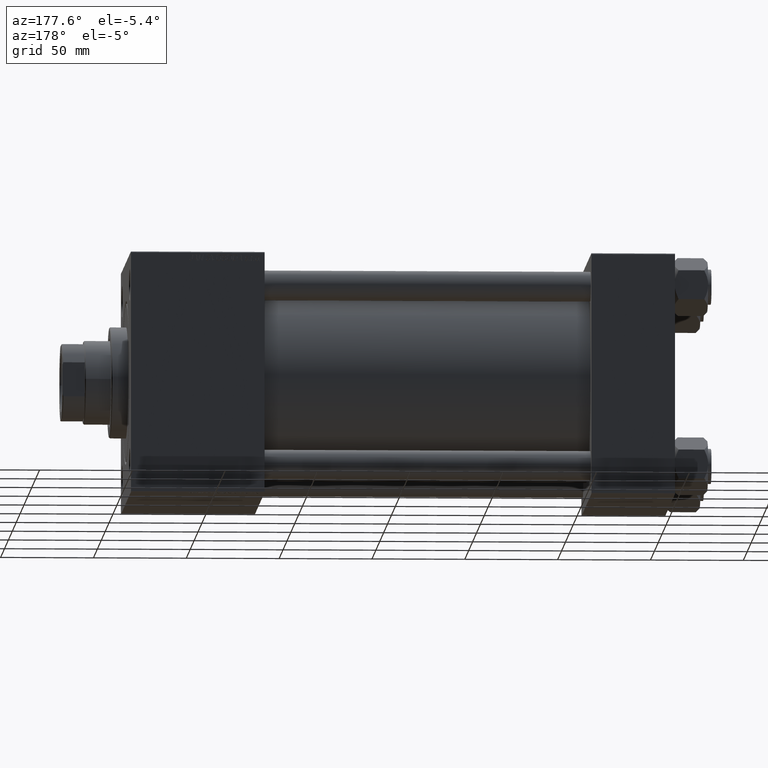
[diagram: clean part render]
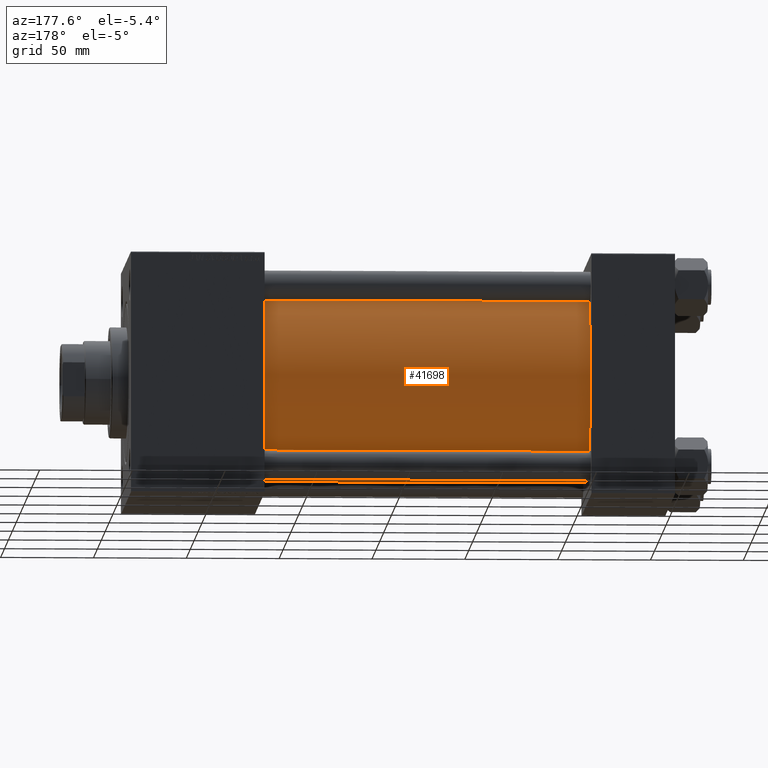
[diagram: same view with one face highlighted and labeled with its STEP entity id]
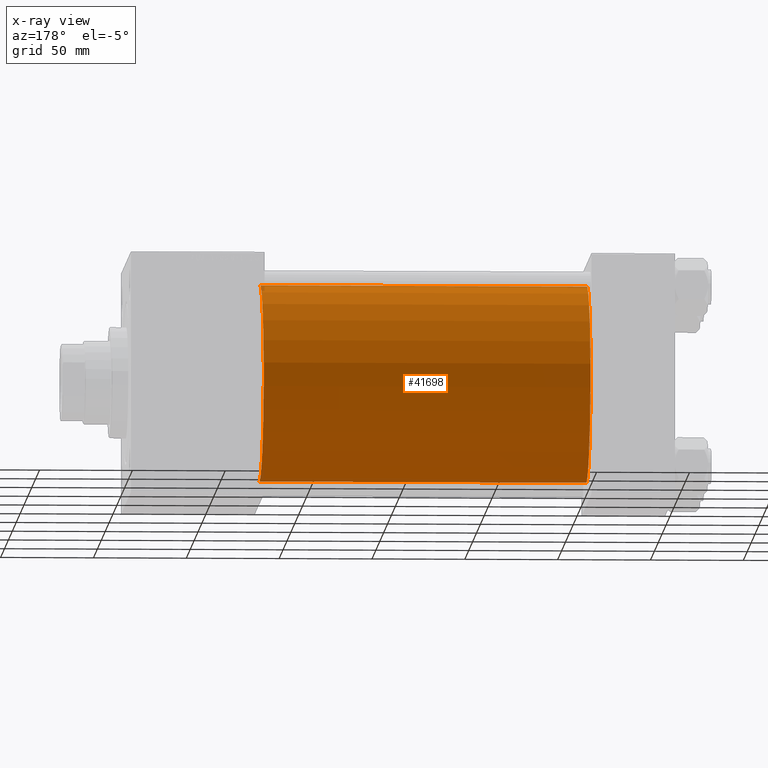
[diagram: x-ray of the same camera — body ghosted, the highlighted face saturated]
A machine part, auxiliary view. The second image highlights one B-rep face of the part: STEP entity #41698.
The next image is the same camera in x-ray: the body ghosted, the highlighted face saturated — about 1% of this face is hidden behind the body in this view.
In plain terms, the highlighted cylindrical surface (partial cylindrical patch) has radius 53 mm, axis along (-1, -0, -0).
Its self-contained STEP definition (entity closure, byte-faithful):
#4159 = EDGE_LOOP ( 'NONE', ( #38160, #28256, #6908, #34471 ) ) ;
#5577 = CARTESIAN_POINT ( 'NONE',  ( 220.9999999999999716, -2.602085213965210642E-15, 0.000000000000000000 ) ) ;
#5628 = CARTESIAN_POINT ( 'NONE',  ( 44.99999999999998579, 3.888542821515762466E-15, -53.00000000000000711 ) ) ;
#6459 = CARTESIAN_POINT ( 'NONE',  ( 220.9999999999999716, 3.888542821515762466E-15, -53.00000000000000711 ) ) ;
#6908 = ORIENTED_EDGE ( 'NONE', *, *, #41211, .T. ) ;
#6961 = EDGE_CURVE ( 'NONE', #33888, #22022, #47571, .T. ) ;
#7247 = EDGE_CURVE ( 'NONE', #33905, #44256, #34197, .T. ) ;
#8464 = CYLINDRICAL_SURFACE ( 'NONE', #14812, 53.00000000000000711 ) ;
#9070 = CIRCLE ( 'NONE', #23027, 53.00000000000000711 ) ;
#14812 = AXIS2_PLACEMENT_3D ( 'NONE', #24147, #16434, #28251 ) ;
#16434 = DIRECTION ( 'NONE',  ( -1.000000000000000000, -0.000000000000000000, -0.000000000000000000 ) ) ;
#17589 = CARTESIAN_POINT ( 'NONE',  ( 44.99999999999998579, -2.602085213965210642E-15, 53.00000000000000711 ) ) ;
#19538 = FACE_OUTER_BOUND ( 'NONE', #4159, .T. ) ;
#20998 = DIRECTION ( 'NONE',  ( 0.000000000000000000, 0.000000000000000000, 1.000000000000000000 ) ) ;
#21506 = DIRECTION ( 'NONE',  ( 1.000000000000000000, -0.000000000000000000, 0.000000000000000000 ) ) ;
#22022 = VERTEX_POINT ( 'NONE', #17589 ) ;
#22398 = DIRECTION ( 'NONE',  ( -1.000000000000000000, -0.000000000000000000, -0.000000000000000000 ) ) ;
#23027 = AXIS2_PLACEMENT_3D ( 'NONE', #28950, #21506, #20998 ) ;
#24147 = CARTESIAN_POINT ( 'NONE',  ( 220.9999999999999716, -2.602085213965210642E-15, 0.000000000000000000 ) ) ;
#28251 = DIRECTION ( 'NONE',  ( 0.000000000000000000, 0.000000000000000000, 1.000000000000000000 ) ) ;
#28256 = ORIENTED_EDGE ( 'NONE', *, *, #7247, .T. ) ;
#28950 = CARTESIAN_POINT ( 'NONE',  ( 44.99999999999998579, -2.602085213965210642E-15, 0.000000000000000000 ) ) ;
#33888 = VERTEX_POINT ( 'NONE', #48645 ) ;
#33905 = VERTEX_POINT ( 'NONE', #44553 ) ;
#34197 = LINE ( 'NONE', #6459, #41971 ) ;
#34471 = ORIENTED_EDGE ( 'NONE', *, *, #6961, .F. ) ;
#35754 = CARTESIAN_POINT ( 'NONE',  ( 220.9999999999999716, -2.602085213965210642E-15, 53.00000000000000711 ) ) ;
#36260 = DIRECTION ( 'NONE',  ( -1.000000000000000000, -0.000000000000000000, -0.000000000000000000 ) ) ;
#37849 = AXIS2_PLACEMENT_3D ( 'NONE', #5577, #41047, #40798 ) ;
#38160 = ORIENTED_EDGE ( 'NONE', *, *, #42119, .F. ) ;
#40798 = DIRECTION ( 'NONE',  ( 0.000000000000000000, 0.000000000000000000, -1.000000000000000000 ) ) ;
#41047 = DIRECTION ( 'NONE',  ( 1.000000000000000000, 0.000000000000000000, 0.000000000000000000 ) ) ;
#41211 = EDGE_CURVE ( 'NONE', #44256, #22022, #9070, .T. ) ;
#41698 = ADVANCED_FACE ( 'NONE', ( #19538 ), #8464, .T. ) ;
#41931 = CIRCLE ( 'NONE', #37849, 53.00000000000000711 ) ;
#41971 = VECTOR ( 'NONE', #22398, 1000.000000000000000 ) ;
#42119 = EDGE_CURVE ( 'NONE', #33905, #33888, #41931, .T. ) ;
#44256 = VERTEX_POINT ( 'NONE', #5628 ) ;
#44553 = CARTESIAN_POINT ( 'NONE',  ( 220.9999999999999716, 3.888542821515762466E-15, -53.00000000000000711 ) ) ;
#47571 = LINE ( 'NONE', #35754, #48630 ) ;
#48630 = VECTOR ( 'NONE', #36260, 1000.000000000000000 ) ;
#48645 = CARTESIAN_POINT ( 'NONE',  ( 220.9999999999999716, -2.602085213965210642E-15, 53.00000000000000711 ) ) ;